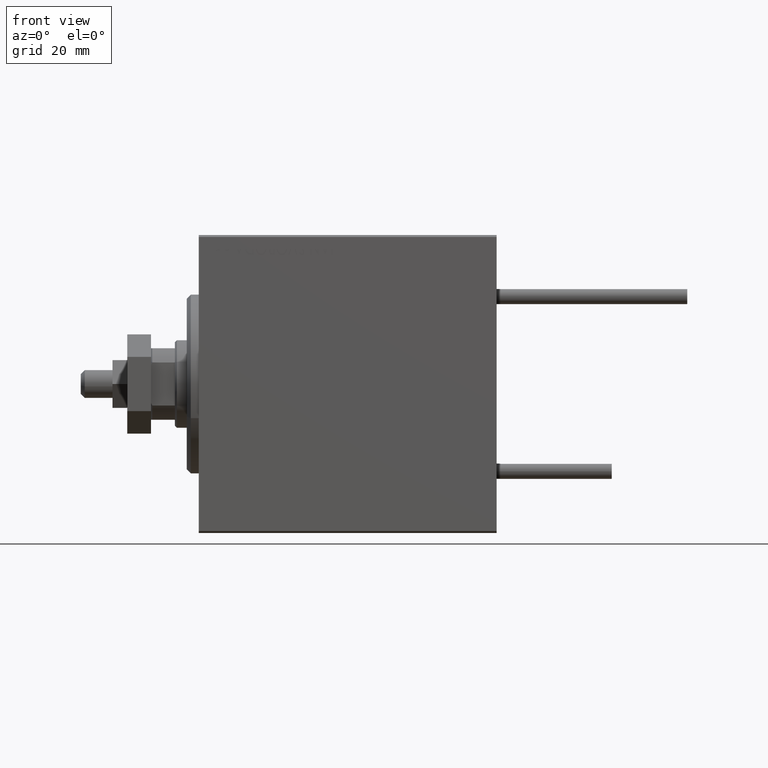
[diagram: clean part render]
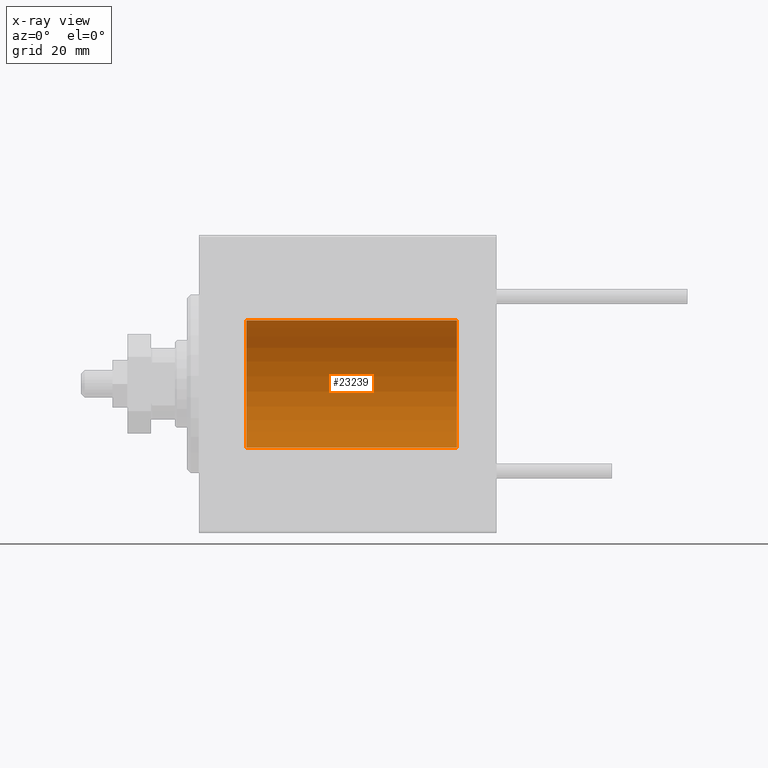
[diagram: x-ray — body ghosted, one internal face saturated and labeled with its STEP entity id]
A machine part, front view, then the same camera in x-ray: the body is ghosted and one INTERNAL B-rep face — a face not visible from any outside direction — is saturated and labeled: STEP entity #23239.
In plain terms, the highlighted cylindrical surface (partial cylindrical patch) has radius 16 mm, axis along (-1, -0, -0).
Its self-contained STEP definition (entity closure, byte-faithful):
#750 = AXIS2_PLACEMENT_3D ( 'NONE', #45995, #3356, #8127 ) ;
#1876 = LINE ( 'NONE', #12739, #46373 ) ;
#2747 = CARTESIAN_POINT ( 'NONE',  ( 65.00000000000000000, 1.959434878635765131E-15, -16.00000000000000000 ) ) ;
#3356 = DIRECTION ( 'NONE',  ( -1.000000000000000000, -0.000000000000000000, -0.000000000000000000 ) ) ;
#3637 = VERTEX_POINT ( 'NONE', #33096 ) ;
#6197 = ORIENTED_EDGE ( 'NONE', *, *, #17498, .T. ) ;
#6577 = CARTESIAN_POINT ( 'NONE',  ( 65.00000000000000000, 0.000000000000000000, 16.00000000000000000 ) ) ;
#8127 = DIRECTION ( 'NONE',  ( 0.000000000000000000, 0.000000000000000000, 1.000000000000000000 ) ) ;
#8482 = ORIENTED_EDGE ( 'NONE', *, *, #13837, .F. ) ;
#10444 = CIRCLE ( 'NONE', #41869, 16.00000000000000000 ) ;
#10943 = CIRCLE ( 'NONE', #39145, 16.00000000000000000 ) ;
#11878 = DIRECTION ( 'NONE',  ( -1.000000000000000000, 0.000000000000000000, 0.000000000000000000 ) ) ;
#12739 = CARTESIAN_POINT ( 'NONE',  ( 65.00000000000000000, 1.959434878635765131E-15, -16.00000000000000000 ) ) ;
#13837 = EDGE_CURVE ( 'NONE', #38471, #3637, #1876, .T. ) ;
#15381 = EDGE_CURVE ( 'NONE', #34226, #38471, #10943, .T. ) ;
#16839 = VERTEX_POINT ( 'NONE', #18749 ) ;
#17498 = EDGE_CURVE ( 'NONE', #34226, #16839, #41492, .T. ) ;
#18510 = DIRECTION ( 'NONE',  ( -1.000000000000000000, -0.000000000000000000, -0.000000000000000000 ) ) ;
#18749 = CARTESIAN_POINT ( 'NONE',  ( 11.99999999999999645, 0.000000000000000000, 16.00000000000000000 ) ) ;
#20309 = EDGE_LOOP ( 'NONE', ( #8482, #33189, #6197, #49878 ) ) ;
#23239 = ADVANCED_FACE ( 'NONE', ( #38161 ), #42449, .F. ) ;
#29486 = EDGE_CURVE ( 'NONE', #16839, #3637, #10444, .T. ) ;
#31067 = CARTESIAN_POINT ( 'NONE',  ( 65.00000000000000000, 0.000000000000000000, 0.000000000000000000 ) ) ;
#32414 = DIRECTION ( 'NONE',  ( -1.000000000000000000, -0.000000000000000000, -0.000000000000000000 ) ) ;
#32980 = DIRECTION ( 'NONE',  ( 0.000000000000000000, 0.000000000000000000, 1.000000000000000000 ) ) ;
#33096 = CARTESIAN_POINT ( 'NONE',  ( 11.99999999999999645, 1.959434878635765131E-15, -16.00000000000000000 ) ) ;
#33189 = ORIENTED_EDGE ( 'NONE', *, *, #15381, .F. ) ;
#33594 = VECTOR ( 'NONE', #18510, 1000.000000000000000 ) ;
#34226 = VERTEX_POINT ( 'NONE', #6577 ) ;
#34600 = DIRECTION ( 'NONE',  ( 0.000000000000000000, 0.000000000000000000, 1.000000000000000000 ) ) ;
#36507 = DIRECTION ( 'NONE',  ( -1.000000000000000000, 0.000000000000000000, 0.000000000000000000 ) ) ;
#37458 = CARTESIAN_POINT ( 'NONE',  ( 65.00000000000000000, 0.000000000000000000, 16.00000000000000000 ) ) ;
#38161 = FACE_OUTER_BOUND ( 'NONE', #20309, .T. ) ;
#38471 = VERTEX_POINT ( 'NONE', #2747 ) ;
#39145 = AXIS2_PLACEMENT_3D ( 'NONE', #31067, #11878, #34600 ) ;
#41492 = LINE ( 'NONE', #37458, #33594 ) ;
#41869 = AXIS2_PLACEMENT_3D ( 'NONE', #44350, #36507, #32980 ) ;
#42449 = CYLINDRICAL_SURFACE ( 'NONE', #750, 16.00000000000000000 ) ;
#44350 = CARTESIAN_POINT ( 'NONE',  ( 11.99999999999999645, 0.000000000000000000, 0.000000000000000000 ) ) ;
#45995 = CARTESIAN_POINT ( 'NONE',  ( 65.00000000000000000, 0.000000000000000000, 0.000000000000000000 ) ) ;
#46373 = VECTOR ( 'NONE', #32414, 1000.000000000000000 ) ;
#49878 = ORIENTED_EDGE ( 'NONE', *, *, #29486, .T. ) ;